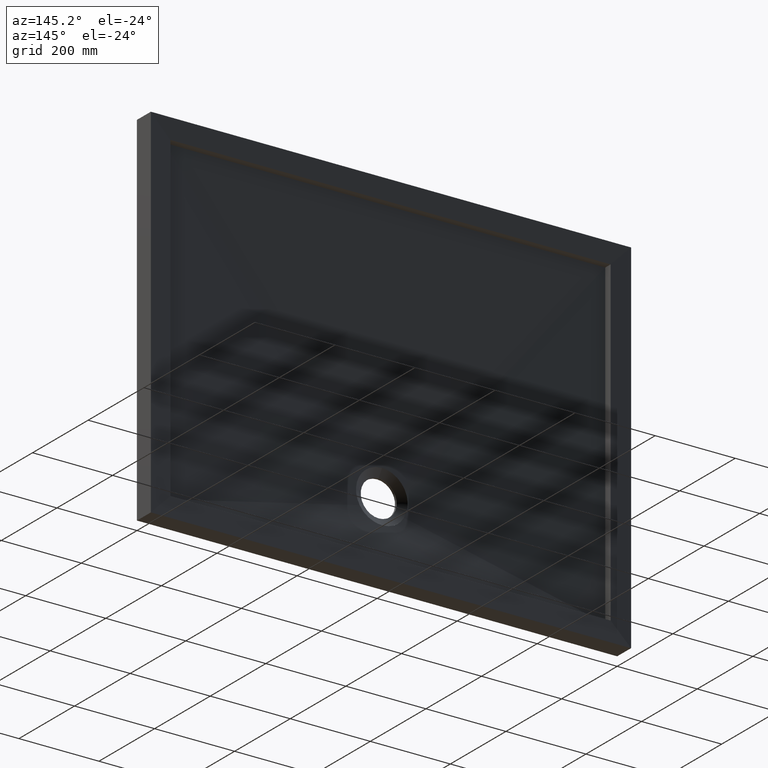
[diagram: clean part render]
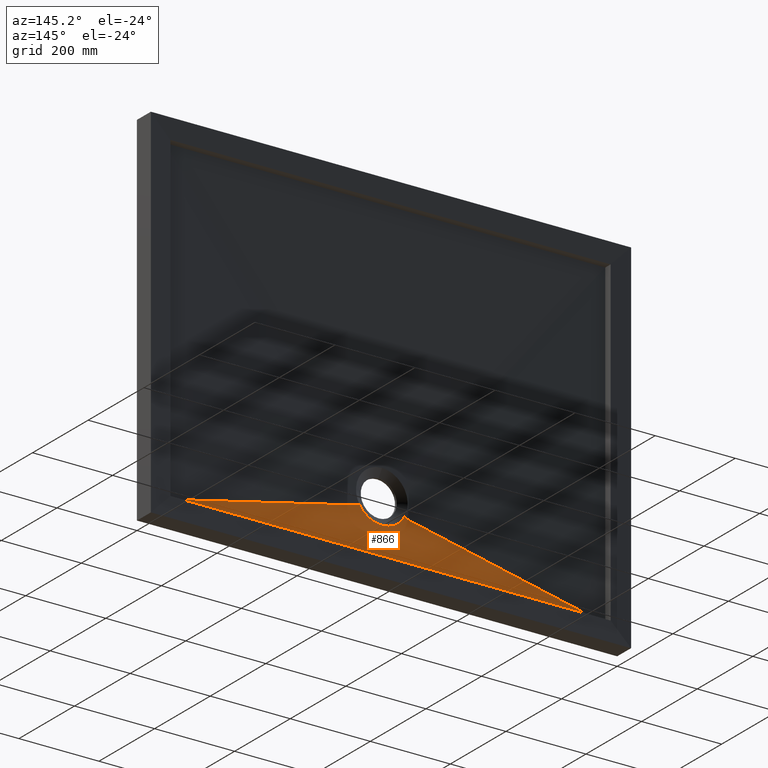
[diagram: same view with one face highlighted and labeled with its STEP entity id]
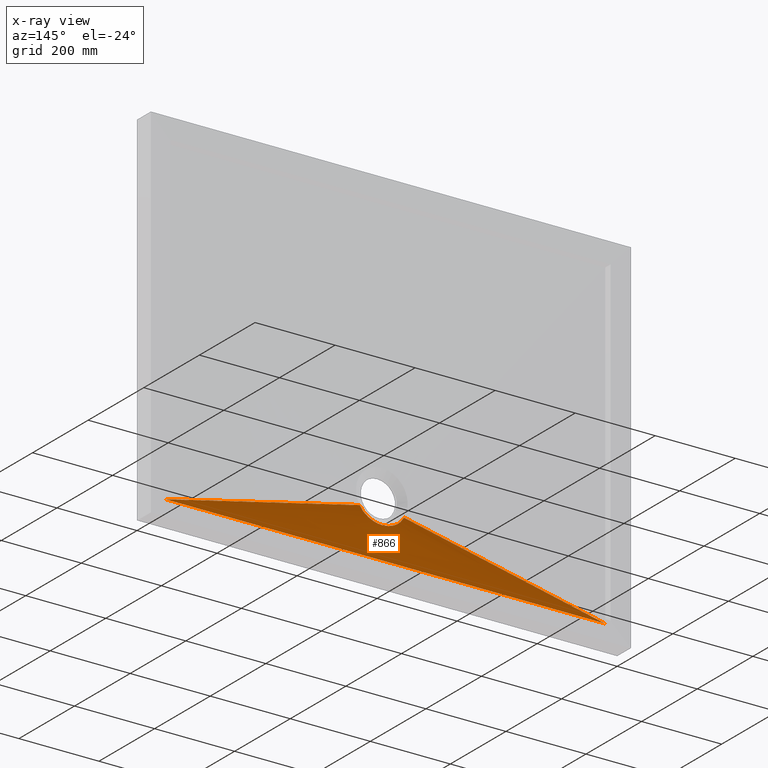
[diagram: x-ray of the same camera — body ghosted, the highlighted face saturated]
A machine part, auxiliary view. The second image highlights one B-rep face of the part: STEP entity #866.
The next image is the same camera in x-ray: the body ghosted, the highlighted face saturated — about 0% of this face is hidden behind the body in this view.
In plain terms, the highlighted face is a freeform B-spline surface patch.
Its self-contained STEP definition (entity closure, byte-faithful):
#2 = CARTESIAN_POINT ( 'NONE',  ( 41.24554029946283200, 17.00000000000000000, -279.9967565814275200 ) ) ;
#7 = CARTESIAN_POINT ( 'NONE',  ( 8.604488429612121800, 16.99999999999999600, -300.3150954962500800 ) ) ;
#22 = CARTESIAN_POINT ( 'NONE',  ( 16.85142588641619500, 17.00000000000000000, -298.1807996022721500 ) ) ;
#25 = CARTESIAN_POINT ( 'NONE',  ( 297.9166666666667400, 29.00000000000000400, -400.0000000000001100 ) ) ;
#31 = CARTESIAN_POINT ( 'NONE',  ( 32.94936161776126200, 17.98202475145491500, -306.0718564028603600 ) ) ;
#37 = CARTESIAN_POINT ( 'NONE',  ( -31.08088943543322800, 17.00000000000000000, -290.4825903620906000 ) ) ;
#50 = CARTESIAN_POINT ( 'NONE',  ( 295.6227701497314200, 23.00000000000000000, -339.9983782907137900 ) ) ;
#51 = CARTESIAN_POINT ( 'NONE',  ( -43.44472359369182600, 17.63258454027220200, -298.3971719251441100 ) ) ;
#57 = DIRECTION ( 'NONE',  ( -0.9730342632391871800, -0.02295097553688907000, 0.2295159586705835800 ) ) ;
#70 = CARTESIAN_POINT ( 'NONE',  ( 14.83989249147583500, 16.99999999999999600, -298.8396679542599900 ) ) ;
#76 = CARTESIAN_POINT ( 'NONE',  ( 550.0000000000000000, 29.00000000000000000, -400.0000000000000600 ) ) ;
#77 = VERTEX_POINT ( 'NONE', #661 ) ;
#79 = CARTESIAN_POINT ( 'NONE',  ( -183.3333333333332300, 28.99999999999991500, -400.0000000000000600 ) ) ;
#81 = VECTOR ( 'NONE', #57, 1000.000000000000200 ) ;
#84 = CARTESIAN_POINT ( 'NONE',  ( -45.83333333333334300, 28.99999999999999600, -400.0000000000000000 ) ) ;
#119 = CARTESIAN_POINT ( 'NONE',  ( 45.03920569739267400, 17.58708350151930600, -296.9170198572422200 ) ) ;
#126 = CARTESIAN_POINT ( 'NONE',  ( 40.23472948865202900, 16.99999999999999600, -281.3866214462923900 ) ) ;
#128 = CARTESIAN_POINT ( 'NONE',  ( 160.4166666666666000, 29.00000000000000000, -400.0000000000001100 ) ) ;
#129 = CARTESIAN_POINT ( 'NONE',  ( -23.21483916317398100, 18.31451858915192000, -310.7509915269406000 ) ) ;
#133 = LINE ( 'NONE', #50, #81 ) ;
#176 = CARTESIAN_POINT ( 'NONE',  ( 30.08813441163125200, 18.08316257188833400, -307.6270990550268000 ) ) ;
#179 = CARTESIAN_POINT ( 'NONE',  ( -55.37302685557201400, 17.33322526307307900, -283.3290992779088200 ) ) ;
#206 = VERTEX_POINT ( 'NONE', #356 ) ;
#219 = CARTESIAN_POINT ( 'NONE',  ( 8.615681621999218700, 18.64253032922937300, -314.4355999955836300 ) ) ;
#235 = CARTESIAN_POINT ( 'NONE',  ( 27.16258535549891200, 18.18458435808267400, -309.0624288624590600 ) ) ;
#250 = B_SPLINE_CURVE_WITH_KNOTS ( 'NONE', 3,
 ( #1016, #119, #1013, #1044, #1052, #877, #1054, #989, #31, #176, #969, #235, #708, #273, #1017, #1008, #773, #219, #480, #476, #760, #787 ),
 .UNSPECIFIED., .F., .F.,
 ( 4, 2, 2, 2, 2, 2, 2, 2, 2, 2, 4 ),
 ( 8.892890325501651500E-017, 0.006507757547486095800, 0.009761636321229106400, 0.01301551509497211900, 0.01952327264245803200, 0.02277715141620098900, 0.02603103018994394600, 0.03904654528491562100, 0.04230042405865852600, 0.04555430283240143700, 0.05206206037988726100 ),
 .UNSPECIFIED. ) ;
#255 = CARTESIAN_POINT ( 'NONE',  ( -183.3333333333332900, 28.99999999999999600, -400.0000000000000600 ) ) ;
#273 = CARTESIAN_POINT ( 'NONE',  ( 21.20816573514893500, 18.37997722518941800, -311.5938621267857800 ) ) ;
#276 = EDGE_LOOP ( 'NONE', ( #607, #756, #483, #999, #331, #852, #730 ) ) ;
#298 = CARTESIAN_POINT ( 'NONE',  ( 1.537251162113777700E-011, 18.69696969696967800, -315.0000000000000600 ) ) ;
#302 = CARTESIAN_POINT ( 'NONE',  ( 550.0000000000000000, 29.00000000000000000, -400.0000000000000600 ) ) ;
#321 = CARTESIAN_POINT ( 'NONE',  ( -32.91589725858209900, 17.98321539497884600, -306.0911863568399600 ) ) ;
#323 = CARTESIAN_POINT ( 'NONE',  ( 2.164204514738804300, 16.99999999999999600, -301.0000000000001700 ) ) ;
#330 = CARTESIAN_POINT ( 'NONE',  ( -29.11457418938581300, 18.11756782892554400, -308.1551291721206100 ) ) ;
#331 = ORIENTED_EDGE ( 'NONE', *, *, #840, .F. ) ;
#351 = CARTESIAN_POINT ( 'NONE',  ( -35.40471239405069100, 16.99999999999999600, -286.7569528003627400 ) ) ;
#356 = CARTESIAN_POINT ( 'NONE',  ( -46.55794818686179300, 17.54700538379253100, -295.3581024804775000 ) ) ;
#367 = CARTESIAN_POINT ( 'NONE',  ( -32.58897540191780000, 16.99999999999999300, -289.2750037699137800 ) ) ;
#369 = CARTESIAN_POINT ( 'NONE',  ( 458.3333333333336000, 29.00000000000000400, -400.0000000000001100 ) ) ;
#371 = CARTESIAN_POINT ( 'NONE',  ( 55.37302685557199300, 17.33322526307307100, -283.3290992779088200 ) ) ;
#373 = CARTESIAN_POINT ( 'NONE',  ( 36.71241751153947800, 17.00000000000000700, -285.4465652530402100 ) ) ;
#375 = CARTESIAN_POINT ( 'NONE',  ( 39.12739289966415900, 17.00000000000000400, -282.7613753169023300 ) ) ;
#376 = CARTESIAN_POINT ( 'NONE',  ( 35.40471239405089000, 16.99999999999999300, -286.7569528003626800 ) ) ;
#377 = CARTESIAN_POINT ( 'NONE',  ( -40.94548979081334000, 17.70970251627498000, -300.4940534163326900 ) ) ;
#379 = CARTESIAN_POINT ( 'NONE',  ( 32.58897540191799900, 17.00000000000000000, -289.2750037699136700 ) ) ;
#382 = CARTESIAN_POINT ( 'NONE',  ( 389.5833333333334800, 29.00000000000000400, -400.0000000000001700 ) ) ;
#384 = CARTESIAN_POINT ( 'NONE',  ( 435.4166666666669100, 29.00000000000000400, -400.0000000000001100 ) ) ;
#385 = CARTESIAN_POINT ( 'NONE',  ( 229.1666666666666300, 29.00000000000000400, -400.0000000000001100 ) ) ;
#387 = CARTESIAN_POINT ( 'NONE',  ( 31.08088943543343100, 17.00000000000000400, -290.4825903620906000 ) ) ;
#388 = CARTESIAN_POINT ( 'NONE',  ( 55.37302685557199300, 17.33322526307307100, -283.3290992779088200 ) ) ;
#390 = VERTEX_POINT ( 'NONE', #694 ) ;
#397 = EDGE_CURVE ( 'NONE', #77, #806, #250, .T. ) ;
#399 = CARTESIAN_POINT ( 'NONE',  ( 550.0000000000000000, 29.00000000000000000, -400.0000000000000600 ) ) ;
#402 = CARTESIAN_POINT ( 'NONE',  ( -39.12739289966394600, 17.00000000000000400, -282.7613753169023300 ) ) ;
#403 = CARTESIAN_POINT ( 'NONE',  ( 46.55794818686192800, 17.54700538379253100, -295.3581024804773300 ) ) ;
#408 = CARTESIAN_POINT ( 'NONE',  ( -18.10874358199140100, 18.45860331676915300, -312.4358313030288600 ) ) ;
#416 = CARTESIAN_POINT ( 'NONE',  ( 183.3333333333332600, 29.00000000000000400, -400.0000000000001100 ) ) ;
#432 = CARTESIAN_POINT ( 'NONE',  ( -4.328338544971770400, 17.00000000000000000, -300.8616903117877000 ) ) ;
#433 = CARTESIAN_POINT ( 'NONE',  ( 320.8333333333334300, 29.00000000000000400, -400.0000000000001100 ) ) ;
#443 = CARTESIAN_POINT ( 'NONE',  ( 45.83333333333324300, 28.99999999999999600, -400.0000000000000600 ) ) ;
#449 = CARTESIAN_POINT ( 'NONE',  ( -27.87358003215162200, 16.99999999999999600, -292.7542436105901500 ) ) ;
#454 = CARTESIAN_POINT ( 'NONE',  ( 366.6666666666668000, 29.00000000000000400, -400.0000000000001100 ) ) ;
#460 = EDGE_CURVE ( 'NONE', #533, #77, #673, .T. ) ;
#462 = CARTESIAN_POINT ( 'NONE',  ( -22.91666666666671400, 28.99999999999999600, -400.0000000000000600 ) ) ;
#466 = EDGE_CURVE ( 'NONE', #390, #1026, #557, .T. ) ;
#476 = CARTESIAN_POINT ( 'NONE',  ( 4.299314123001091800, 18.68658987406933400, -314.8938471124924900 ) ) ;
#480 = CARTESIAN_POINT ( 'NONE',  ( 7.533607922988123200, 18.65551546071026200, -314.5710354989730600 ) ) ;
#481 = CARTESIAN_POINT ( 'NONE',  ( -55.37302685557201400, 17.33322526307307900, -283.3290992779088200 ) ) ;
#483 = ORIENTED_EDGE ( 'NONE', *, *, #466, .F. ) ;
#502 = CARTESIAN_POINT ( 'NONE',  ( -229.1666666666666300, 28.99999999999999300, -400.0000000000000600 ) ) ;
#505 = CARTESIAN_POINT ( 'NONE',  ( -10.71637495685288900, 17.00000000000000400, -299.9068620815319800 ) ) ;
#511 = CARTESIAN_POINT ( 'NONE',  ( 22.60438234691133300, 17.00000000000000000, -295.7621321239893700 ) ) ;
#513 = CARTESIAN_POINT ( 'NONE',  ( 20.73369788839090300, 16.99999999999999600, -296.6419744071005800 ) ) ;
#515 = CARTESIAN_POINT ( 'NONE',  ( -252.0833333333332600, 28.99999999999998900, -400.0000000000000000 ) ) ;
#517 = CARTESIAN_POINT ( 'NONE',  ( 252.0833333333333100, 29.00000000000000400, -400.0000000000001100 ) ) ;
#518 = CARTESIAN_POINT ( 'NONE',  ( 27.87358003215182500, 17.00000000000000000, -292.7542436105902700 ) ) ;
#526 = CARTESIAN_POINT ( 'NONE',  ( 26.17432800528051100, 17.00000000000000400, -293.8182084445587100 ) ) ;
#533 = VERTEX_POINT ( 'NONE', #388 ) ;
#535 = VECTOR ( 'NONE', #699, 1000.000000000000200 ) ;
#537 = CARTESIAN_POINT ( 'NONE',  ( -13.90988857429249300, 18.55501136790016800, -313.5035232213255700 ) ) ;
#539 = CARTESIAN_POINT ( 'NONE',  ( -114.5833333333332900, 29.00000000000000400, -400.0000000000000000 ) ) ;
#544 = CARTESIAN_POINT ( 'NONE',  ( -14.83989249147562700, 16.99999999999999600, -298.8396679542598800 ) ) ;
#545 = LINE ( 'NONE', #729, #535 ) ;
#557 = B_SPLINE_CURVE_WITH_KNOTS ( 'NONE', 3,
 ( #680, #79, #874, #302 ),
 .UNSPECIFIED., .F., .F.,
 ( 4, 4 ),
 ( 0.0000000000000000000, 1.000000000000000000 ),
 .UNSPECIFIED. ) ;
#559 = CARTESIAN_POINT ( 'NONE',  ( -549.9999999999997700, 29.00000000000000000, -400.0000000000000600 ) ) ;
#562 = B_SPLINE_CURVE_WITH_KNOTS ( 'NONE', 3,
 ( #850, #728, #888, #481 ),
 .UNSPECIFIED., .F., .F.,
 ( 4, 4 ),
 ( 1.387778780781445500E-017, 0.01491469851934567800 ),
 .UNSPECIFIED. ) ;
#563 = CARTESIAN_POINT ( 'NONE',  ( 91.66666666666657200, 28.99999999999999600, -400.0000000000000600 ) ) ;
#574 = CARTESIAN_POINT ( 'NONE',  ( -41.24554029946263300, 17.00000000000000000, -279.9967565814275200 ) ) ;
#581 = EDGE_CURVE ( 'NONE', #806, #206, #686, .T. ) ;
#595 = CARTESIAN_POINT ( 'NONE',  ( -14.97153829890832600, 18.53276178447434600, -313.2615587331525300 ) ) ;
#602 = CARTESIAN_POINT ( 'NONE',  ( -27.17406466986360400, 18.18530002171415600, -309.0862246060493700 ) ) ;
#607 = ORIENTED_EDGE ( 'NONE', *, *, #460, .F. ) ;
#623 = CARTESIAN_POINT ( 'NONE',  ( 114.5833333333332600, 29.00000000000000000, -400.0000000000001100 ) ) ;
#644 = EDGE_CURVE ( 'NONE', #689, #390, #545, .T. ) ;
#657 = CARTESIAN_POINT ( 'NONE',  ( -527.0833333333331400, 29.00000000000000000, -400.0000000000001100 ) ) ;
#661 = CARTESIAN_POINT ( 'NONE',  ( 46.55794818686192800, 17.54700538379253100, -295.3581024804773300 ) ) ;
#673 = B_SPLINE_CURVE_WITH_KNOTS ( 'NONE', 3,
 ( #371, #817, #970, #403 ),
 .UNSPECIFIED., .F., .F.,
 ( 4, 4 ),
 ( 0.0000000000000000000, 0.01491469851934544900 ),
 .UNSPECIFIED. ) ;
#677 = CARTESIAN_POINT ( 'NONE',  ( -40.09330622722796300, 17.73690884482898900, -301.1733305452611400 ) ) ;
#680 = CARTESIAN_POINT ( 'NONE',  ( -549.9999999999997700, 29.00000000000000000, -400.0000000000000600 ) ) ;
#686 = B_SPLINE_CURVE_WITH_KNOTS ( 'NONE', 3,
 ( #298, #687, #739, #537, #595, #941, #408, #1053, #129, #602, #330, #321, #1014, #1019, #828, #677, #377, #51, #910, #810 ),
 .UNSPECIFIED., .F., .F.,
 ( 4, 2, 2, 2, 2, 2, 2, 2, 2, 4 ),
 ( 0.05206206037988726100, 0.06508818866521416700, 0.06834472073654590500, 0.07160125280787765800, 0.07811431695054107900, 0.08462738109320450100, 0.09114044523586792300, 0.09439697730719968900, 0.09765350937853145600, 0.1041665735211949700 ),
 .UNSPECIFIED. ) ;
#687 = CARTESIAN_POINT ( 'NONE',  ( -4.298534420287463600, 18.69696969696977400, -315.0000000000010800 ) ) ;
#689 = VERTEX_POINT ( 'NONE', #179 ) ;
#694 = CARTESIAN_POINT ( 'NONE',  ( -549.9999999999997700, 29.00000000000000000, -400.0000000000000600 ) ) ;
#699 = DIRECTION ( 'NONE',  ( -0.9730342632391871800, 0.02295097553688907000, -0.2295159586705835800 ) ) ;
#708 = CARTESIAN_POINT ( 'NONE',  ( 26.17677111906168400, 18.21785742341332800, -309.5057857512754800 ) ) ;
#710 = CARTESIAN_POINT ( 'NONE',  ( -8.604488429611914000, 17.00000000000000000, -300.3150954962501400 ) ) ;
#728 = CARTESIAN_POINT ( 'NONE',  ( -49.91955678765825200, 17.44690541430102100, -291.6591121120574700 ) ) ;
#729 = CARTESIAN_POINT ( 'NONE',  ( -295.6227701497312000, 23.00000000000000000, -339.9983782907137900 ) ) ;
#730 = ORIENTED_EDGE ( 'NONE', *, *, #397, .F. ) ;
#739 = CARTESIAN_POINT ( 'NONE',  ( -8.580038337663122400, 18.65489822346124500, -314.5778780144934800 ) ) ;
#755 = CARTESIAN_POINT ( 'NONE',  ( -20.73369788839070400, 17.00000000000000000, -296.6419744071006300 ) ) ;
#756 = ORIENTED_EDGE ( 'NONE', *, *, #929, .F. ) ;
#760 = CARTESIAN_POINT ( 'NONE',  ( 2.147516069572613400, 18.69696969696964200, -314.9999999999996600 ) ) ;
#765 = CARTESIAN_POINT ( 'NONE',  ( -320.8333333333333100, 28.99999999999999600, -400.0000000000001100 ) ) ;
#773 = CARTESIAN_POINT ( 'NONE',  ( 10.76079633578690100, 18.61183888448253400, -314.1122591929359400 ) ) ;
#777 = B_SPLINE_SURFACE_WITH_KNOTS ( 'NONE', 3, 1, ( 
 ( #559, #574 ),
 ( #657, #853 ),
 ( #1042, #402 ),
 ( #963, #841 ),
 ( #1010, #351 ),
 ( #1004, #367 ),
 ( #1036, #37 ),
 ( #765, #449 ),
 ( #980, #985 ),
 ( #515, #955 ),
 ( #502, #755 ),
 ( #255, #914 ),
 ( #990, #544 ),
 ( #539, #505 ),
 ( #799, #710 ),
 ( #84, #432 ),
 ( #462, #1006 ),
 ( #834, #323 ),
 ( #443, #1024 ),
 ( #563, #7 ),
 ( #623, #988 ),
 ( #128, #70 ),
 ( #416, #22 ),
 ( #385, #513 ),
 ( #517, #511 ),
 ( #25, #526 ),
 ( #433, #518 ),
 ( #454, #387 ),
 ( #382, #379 ),
 ( #384, #376 ),
 ( #369, #373 ),
 ( #957, #375 ),
 ( #949, #126 ),
 ( #76, #2 ) ),
 .UNSPECIFIED., .F., .F., .F.,
 ( 4, 2, 2, 2, 2, 2, 2, 2, 2, 2, 2, 2, 2, 2, 2, 2, 4 ),
 ( 2, 2 ),
 ( 0.0000000000000000000, 0.06250000000000001400, 0.1250000000000000300, 0.1875000000000000600, 0.2500000000000000600, 0.3125000000000000600, 0.3750000000000001100, 0.4375000000000001100, 0.5000000000000000000, 0.5625000000000000000, 0.6250000000000000000, 0.6875000000000000000, 0.7500000000000000000, 0.8125000000000001100, 0.8750000000000001100, 0.9375000000000001100, 1.000000000000000000 ),
 ( 0.0000000000000000000, 1.000000000000000000 ),
 .UNSPECIFIED. ) ;
#787 = CARTESIAN_POINT ( 'NONE',  ( 1.537251162113777700E-011, 18.69696969696967800, -315.0000000000000600 ) ) ;
#799 = CARTESIAN_POINT ( 'NONE',  ( -91.66666666666661500, 29.00000000000000400, -400.0000000000000000 ) ) ;
#806 = VERTEX_POINT ( 'NONE', #977 ) ;
#810 = CARTESIAN_POINT ( 'NONE',  ( -46.55794818686179300, 17.54700538379253100, -295.3581024804775000 ) ) ;
#817 = CARTESIAN_POINT ( 'NONE',  ( 52.86791065954131600, 17.38251312027708600, -287.6566463454447600 ) ) ;
#828 = CARTESIAN_POINT ( 'NONE',  ( -38.35877966739725800, 17.79393450763781500, -302.4860646815217800 ) ) ;
#834 = CARTESIAN_POINT ( 'NONE',  ( 22.91666666666657500, 28.99999999999999600, -400.0000000000000600 ) ) ;
#840 = EDGE_CURVE ( 'NONE', #206, #689, #562, .T. ) ;
#841 = CARTESIAN_POINT ( 'NONE',  ( -36.71241751153927900, 17.00000000000000000, -285.4465652530402100 ) ) ;
#850 = CARTESIAN_POINT ( 'NONE',  ( -46.55794818686179300, 17.54700538379253100, -295.3581024804775000 ) ) ;
#852 = ORIENTED_EDGE ( 'NONE', *, *, #581, .F. ) ;
#853 = CARTESIAN_POINT ( 'NONE',  ( -40.23472948865182300, 16.99999999999999600, -281.3866214462924500 ) ) ;
#866 = ADVANCED_FACE ( 'NONE', ( #1030 ), #777, .F. ) ;
#874 = CARTESIAN_POINT ( 'NONE',  ( 183.3333333333334600, 28.99999999999991500, -400.0000000000000600 ) ) ;
#877 = CARTESIAN_POINT ( 'NONE',  ( 38.37569314896828100, 17.79336876824082100, -302.4736801645490200 ) ) ;
#888 = CARTESIAN_POINT ( 'NONE',  ( -52.86791065954111000, 17.38251312027708600, -287.6566463454448100 ) ) ;
#910 = CARTESIAN_POINT ( 'NONE',  ( -45.03796391510604700, 17.58711627093019200, -296.9182944880622000 ) ) ;
#914 = CARTESIAN_POINT ( 'NONE',  ( -16.85142588641598100, 17.00000000000000000, -298.1807996022721500 ) ) ;
#929 = EDGE_CURVE ( 'NONE', #1026, #533, #133, .T. ) ;
#941 = CARTESIAN_POINT ( 'NONE',  ( -17.06971797887121100, 18.48458127295714000, -312.7279562914781100 ) ) ;
#949 = CARTESIAN_POINT ( 'NONE',  ( 527.0833333333333700, 29.00000000000000400, -400.0000000000001100 ) ) ;
#955 = CARTESIAN_POINT ( 'NONE',  ( -22.60438234691112300, 16.99999999999999600, -295.7621321239893200 ) ) ;
#957 = CARTESIAN_POINT ( 'NONE',  ( 504.1666666666667400, 29.00000000000000400, -400.0000000000001100 ) ) ;
#963 = CARTESIAN_POINT ( 'NONE',  ( -458.3333333333332600, 29.00000000000000400, -400.0000000000001100 ) ) ;
#969 = CARTESIAN_POINT ( 'NONE',  ( 29.11812074944235100, 18.11724165814088700, -308.1232448367147800 ) ) ;
#970 = CARTESIAN_POINT ( 'NONE',  ( 49.91955678765838700, 17.44690541430103500, -291.6591121120574100 ) ) ;
#977 = CARTESIAN_POINT ( 'NONE',  ( 1.537251162113777700E-011, 18.69696969696967800, -315.0000000000000600 ) ) ;
#980 = CARTESIAN_POINT ( 'NONE',  ( -297.9166666666666300, 28.99999999999999300, -400.0000000000000600 ) ) ;
#985 = CARTESIAN_POINT ( 'NONE',  ( -26.17432800528030200, 17.00000000000000000, -293.8182084445587600 ) ) ;
#988 = CARTESIAN_POINT ( 'NONE',  ( 10.71637495685309800, 17.00000000000000000, -299.9068620815319800 ) ) ;
#989 = CARTESIAN_POINT ( 'NONE',  ( 34.80018389869658100, 17.91590041331326000, -304.9423370379306600 ) ) ;
#990 = CARTESIAN_POINT ( 'NONE',  ( -160.4166666666666300, 28.99999999999999600, -400.0000000000000000 ) ) ;
#999 = ORIENTED_EDGE ( 'NONE', *, *, #644, .F. ) ;
#1004 = CARTESIAN_POINT ( 'NONE',  ( -389.5833333333333100, 29.00000000000000400, -400.0000000000001100 ) ) ;
#1006 = CARTESIAN_POINT ( 'NONE',  ( -2.164204514738597300, 16.99999999999999600, -301.0000000000002300 ) ) ;
#1008 = CARTESIAN_POINT ( 'NONE',  ( 11.82526218697749000, 18.59413330511480600, -313.9243698558939900 ) ) ;
#1010 = CARTESIAN_POINT ( 'NONE',  ( -435.4166666666666300, 29.00000000000000000, -400.0000000000001100 ) ) ;
#1013 = CARTESIAN_POINT ( 'NONE',  ( 43.44878865495859100, 17.63247186672153100, -298.3932553781380100 ) ) ;
#1014 = CARTESIAN_POINT ( 'NONE',  ( -34.78097225123551800, 17.91657600346223200, -304.9545983011366300 ) ) ;
#1016 = CARTESIAN_POINT ( 'NONE',  ( 46.55794818686192800, 17.54700538379253100, -295.3581024804773300 ) ) ;
#1017 = CARTESIAN_POINT ( 'NONE',  ( 17.10790625485535100, 18.49485671057868800, -312.8562625344350200 ) ) ;
#1019 = CARTESIAN_POINT ( 'NONE',  ( -37.47596528544777800, 17.82376448759662000, -303.1199868431745600 ) ) ;
#1024 = CARTESIAN_POINT ( 'NONE',  ( 4.328338544971980900, 17.00000000000000000, -300.8616903117877000 ) ) ;
#1026 = VERTEX_POINT ( 'NONE', #399 ) ;
#1030 = FACE_OUTER_BOUND ( 'NONE', #276, .T. ) ;
#1036 = CARTESIAN_POINT ( 'NONE',  ( -366.6666666666666300, 29.00000000000000400, -400.0000000000001100 ) ) ;
#1042 = CARTESIAN_POINT ( 'NONE',  ( -504.1666666666665200, 29.00000000000000000, -400.0000000000001100 ) ) ;
#1044 = CARTESIAN_POINT ( 'NONE',  ( 40.95676765276206800, 17.70934818993836800, -300.4848421197581300 ) ) ;
#1052 = CARTESIAN_POINT ( 'NONE',  ( 40.10832760824008100, 17.73642484849538900, -301.1615382015166900 ) ) ;
#1053 = CARTESIAN_POINT ( 'NONE',  ( -21.19611927929002700, 18.37595651006187600, -311.4846568338183500 ) ) ;
#1054 = CARTESIAN_POINT ( 'NONE',  ( 37.49154822823709300, 17.82323491781201200, -303.1089645078204700 ) ) ;